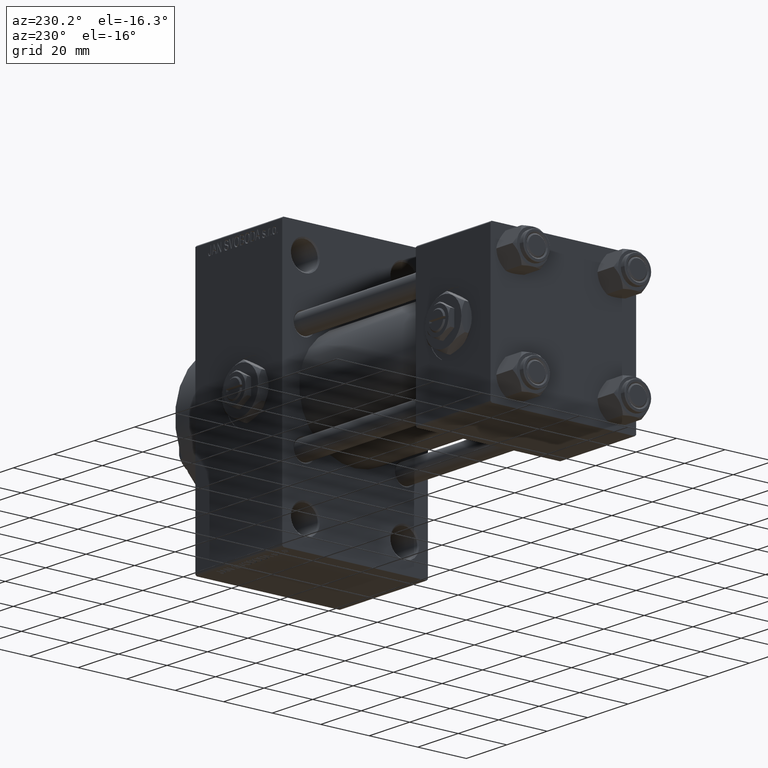
[diagram: clean part render]
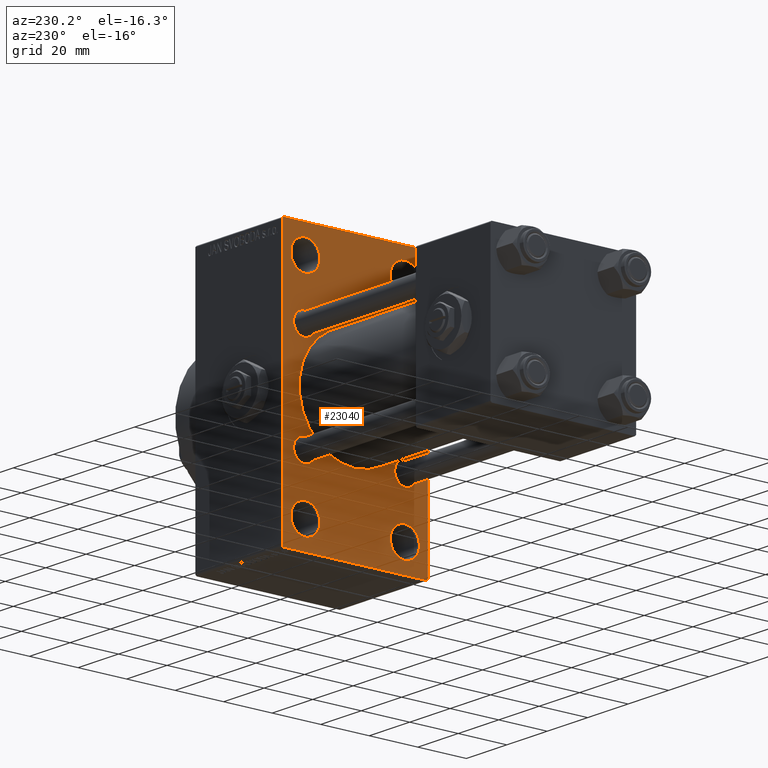
[diagram: same view with one face highlighted and labeled with its STEP entity id]
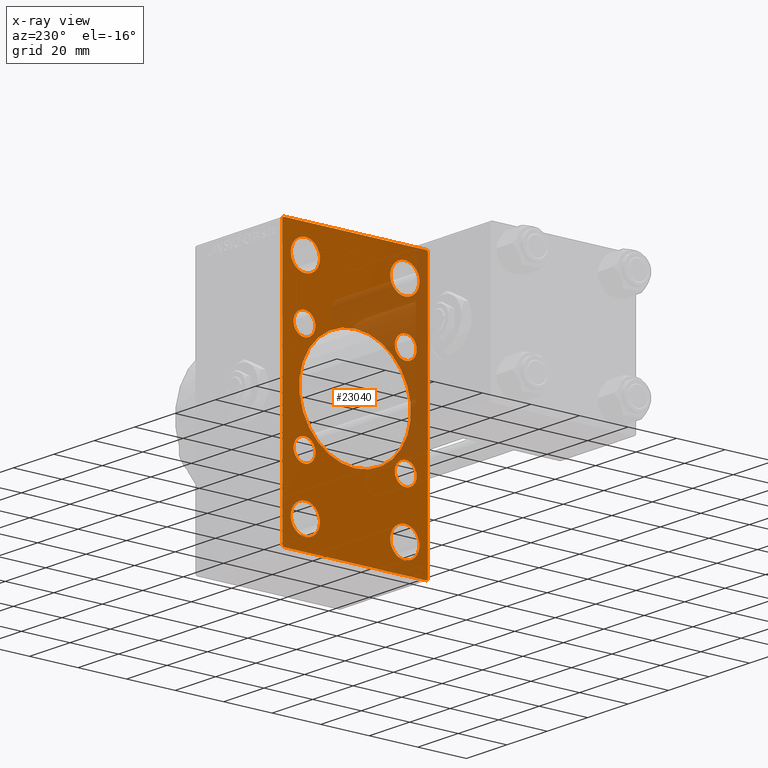
[diagram: x-ray of the same camera — body ghosted, the highlighted face saturated]
A machine part, auxiliary view. The second image highlights one B-rep face of the part: STEP entity #23040.
The next image is the same camera in x-ray: the body ghosted, the highlighted face saturated — about 22% of this face is hidden behind the body in this view.
In plain terms, the highlighted planar face has unit normal (-1, 0, 0).
Its self-contained STEP definition (entity closure, byte-faithful):
#150 = ORIENTED_EDGE ( 'NONE', *, *, #42231, .T. ) ;
#209 = EDGE_CURVE ( 'NONE', #23842, #15960, #23821, .T. ) ;
#325 = VERTEX_POINT ( 'NONE', #3480 ) ;
#548 = VECTOR ( 'NONE', #8849, 999.9999999999998863 ) ;
#586 = CARTESIAN_POINT ( 'NONE',  ( 103.0000000000000142, 20.84999999999999787, -25.35000000000000853 ) ) ;
#807 = AXIS2_PLACEMENT_3D ( 'NONE', #17692, #18436, #21688 ) ;
#1082 = CARTESIAN_POINT ( 'NONE',  ( 103.0000000000000142, -29.49999999999997513, 54.50000000000000000 ) ) ;
#1158 = VERTEX_POINT ( 'NONE', #41146 ) ;
#1219 = AXIS2_PLACEMENT_3D ( 'NONE', #29795, #41504, #4742 ) ;
#1446 = FACE_BOUND ( 'NONE', #37759, .T. ) ;
#1465 = DIRECTION ( 'NONE',  ( -0.000000000000000000, 0.7071067811865451302, 0.7071067811865500152 ) ) ;
#1754 = CARTESIAN_POINT ( 'NONE',  ( 103.0000000000000142, 20.84999999999999787, 25.35000000000000853 ) ) ;
#1761 = CARTESIAN_POINT ( 'NONE',  ( 103.0000000000000142, -20.84999999999999076, -16.34999999999999787 ) ) ;
#1772 = DIRECTION ( 'NONE',  ( 0.000000000000000000, 0.000000000000000000, 1.000000000000000000 ) ) ;
#1883 = LINE ( 'NONE', #21065, #41792 ) ;
#1897 = EDGE_LOOP ( 'NONE', ( #16395, #23778 ) ) ;
#2391 = VERTEX_POINT ( 'NONE', #1754 ) ;
#2395 = ORIENTED_EDGE ( 'NONE', *, *, #20343, .T. ) ;
#2466 = EDGE_CURVE ( 'NONE', #19553, #47683, #39825, .T. ) ;
#2744 = DIRECTION ( 'NONE',  ( 0.000000000000000000, -1.000000000000000000, -1.156482317317871478E-16 ) ) ;
#2986 = EDGE_LOOP ( 'NONE', ( #37488, #16113 ) ) ;
#3005 = CIRCLE ( 'NONE', #42802, 5.999999999999921840 ) ;
#3369 = ORIENTED_EDGE ( 'NONE', *, *, #25254, .F. ) ;
#3480 = CARTESIAN_POINT ( 'NONE',  ( 103.0000000000000142, -20.50000000000000000, -49.49999999999992184 ) ) ;
#3595 = CARTESIAN_POINT ( 'NONE',  ( 103.0000000000000142, -2.602085213965210642E-15, 23.00000000000000000 ) ) ;
#3650 = VECTOR ( 'NONE', #14931, 1000.000000000000000 ) ;
#3725 = CARTESIAN_POINT ( 'NONE',  ( 103.0000000000000142, 20.84999999999999787, -20.85000000000000142 ) ) ;
#3952 = DIRECTION ( 'NONE',  ( 1.000000000000000000, 0.000000000000000000, 0.000000000000000000 ) ) ;
#4019 = CARTESIAN_POINT ( 'NONE',  ( 103.0000000000000142, -20.84999999999999076, -20.85000000000000497 ) ) ;
#4073 = VERTEX_POINT ( 'NONE', #1082 ) ;
#4374 = CIRCLE ( 'NONE', #41789, 23.00000000000000000 ) ;
#4742 = DIRECTION ( 'NONE',  ( 0.000000000000000000, 0.000000000000000000, 1.000000000000000000 ) ) ;
#4760 = LINE ( 'NONE', #8499, #32496 ) ;
#4872 = DIRECTION ( 'NONE',  ( 0.000000000000000000, 0.000000000000000000, 1.000000000000000000 ) ) ;
#5172 = FACE_BOUND ( 'NONE', #24125, .T. ) ;
#5199 = AXIS2_PLACEMENT_3D ( 'NONE', #3725, #22918, #10352 ) ;
#5432 = EDGE_CURVE ( 'NONE', #14547, #1158, #14981, .T. ) ;
#5500 = DIRECTION ( 'NONE',  ( 0.000000000000000000, 0.000000000000000000, 1.000000000000000000 ) ) ;
#5585 = ORIENTED_EDGE ( 'NONE', *, *, #19047, .F. ) ;
#5674 = VERTEX_POINT ( 'NONE', #33079 ) ;
#5701 = ORIENTED_EDGE ( 'NONE', *, *, #21926, .T. ) ;
#6208 = VECTOR ( 'NONE', #1465, 1000.000000000000114 ) ;
#6415 = CARTESIAN_POINT ( 'NONE',  ( 103.0000000000000142, 20.50000000000000000, -43.50000000000000000 ) ) ;
#6669 = DIRECTION ( 'NONE',  ( -0.000000000000000000, 0.000000000000000000, 1.000000000000000000 ) ) ;
#6851 = VECTOR ( 'NONE', #2744, 1000.000000000000000 ) ;
#7062 = EDGE_CURVE ( 'NONE', #13175, #22643, #28833, .T. ) ;
#7222 = CARTESIAN_POINT ( 'NONE',  ( 103.0000000000000142, 29.99999999999999645, -54.49999999999999289 ) ) ;
#7334 = AXIS2_PLACEMENT_3D ( 'NONE', #40698, #43937, #36952 ) ;
#7592 = CIRCLE ( 'NONE', #25132, 5.999999999999921840 ) ;
#7688 = DIRECTION ( 'NONE',  ( 0.000000000000000000, 0.000000000000000000, -1.000000000000000000 ) ) ;
#7738 = AXIS2_PLACEMENT_3D ( 'NONE', #43117, #47108, #35153 ) ;
#8414 = CIRCLE ( 'NONE', #22077, 5.999999999999921840 ) ;
#8499 = CARTESIAN_POINT ( 'NONE',  ( 103.0000000000000142, 29.99999999999999645, 54.49999999999999289 ) ) ;
#8638 = ORIENTED_EDGE ( 'NONE', *, *, #27052, .T. ) ;
#8662 = ORIENTED_EDGE ( 'NONE', *, *, #27776, .T. ) ;
#8726 = CARTESIAN_POINT ( 'NONE',  ( 103.0000000000000142, -20.84999999999999076, 25.35000000000001208 ) ) ;
#8849 = DIRECTION ( 'NONE',  ( 0.000000000000000000, -0.7071067811865157093, 0.7071067811865794361 ) ) ;
#9007 = EDGE_CURVE ( 'NONE', #17499, #46875, #40032, .T. ) ;
#9154 = FACE_BOUND ( 'NONE', #2986, .T. ) ;
#9157 = CARTESIAN_POINT ( 'NONE',  ( 103.0000000000000142, 20.50000000000000000, -37.50000000000007816 ) ) ;
#9491 = CARTESIAN_POINT ( 'NONE',  ( 103.0000000000000142, 20.50000000000000000, -43.50000000000000000 ) ) ;
#9772 = VERTEX_POINT ( 'NONE', #33029 ) ;
#10107 = VECTOR ( 'NONE', #28022, 1000.000000000000000 ) ;
#10352 = DIRECTION ( 'NONE',  ( 0.000000000000000000, 0.000000000000000000, 1.000000000000000000 ) ) ;
#11280 = VECTOR ( 'NONE', #48902, 1000.000000000000000 ) ;
#11454 = CARTESIAN_POINT ( 'NONE',  ( 103.0000000000000142, 20.84999999999999787, 20.85000000000000142 ) ) ;
#11670 = CIRCLE ( 'NONE', #35553, 4.500000000000007105 ) ;
#12434 = VERTEX_POINT ( 'NONE', #19715 ) ;
#12725 = AXIS2_PLACEMENT_3D ( 'NONE', #48228, #40745, #29289 ) ;
#12845 = DIRECTION ( 'NONE',  ( 1.000000000000000000, -0.000000000000000000, 0.000000000000000000 ) ) ;
#12854 = EDGE_LOOP ( 'NONE', ( #24154, #38381 ) ) ;
#13175 = VERTEX_POINT ( 'NONE', #27981 ) ;
#13303 = AXIS2_PLACEMENT_3D ( 'NONE', #37252, #30022, #33515 ) ;
#13334 = DIRECTION ( 'NONE',  ( 1.000000000000000000, -0.000000000000000000, 0.000000000000000000 ) ) ;
#13892 = PLANE ( 'NONE',  #44278 ) ;
#14025 = CIRCLE ( 'NONE', #49096, 5.999999999999921840 ) ;
#14329 = DIRECTION ( 'NONE',  ( 0.000000000000000000, 0.000000000000000000, 1.000000000000000000 ) ) ;
#14547 = VERTEX_POINT ( 'NONE', #38587 ) ;
#14785 = EDGE_LOOP ( 'NONE', ( #39568, #17762 ) ) ;
#14791 = CARTESIAN_POINT ( 'NONE',  ( 103.0000000000000142, -20.84999999999999076, -25.35000000000001208 ) ) ;
#14931 = DIRECTION ( 'NONE',  ( 0.000000000000000000, 0.000000000000000000, -1.000000000000000000 ) ) ;
#14981 = LINE ( 'NONE', #15466, #11280 ) ;
#15466 = CARTESIAN_POINT ( 'NONE',  ( 103.0000000000000142, 41.99999999999915445, -42.00000000000149214 ) ) ;
#15774 = VERTEX_POINT ( 'NONE', #18429 ) ;
#15960 = VERTEX_POINT ( 'NONE', #18794 ) ;
#16113 = ORIENTED_EDGE ( 'NONE', *, *, #17297, .T. ) ;
#16119 = ORIENTED_EDGE ( 'NONE', *, *, #38322, .T. ) ;
#16395 = ORIENTED_EDGE ( 'NONE', *, *, #7062, .T. ) ;
#16584 = CARTESIAN_POINT ( 'NONE',  ( 103.0000000000000142, 20.50000000000000000, 43.50000000000000000 ) ) ;
#16902 = VERTEX_POINT ( 'NONE', #9157 ) ;
#17069 = CARTESIAN_POINT ( 'NONE',  ( 103.0000000000000142, 20.84999999999999787, 20.85000000000000142 ) ) ;
#17127 = EDGE_CURVE ( 'NONE', #42479, #47073, #1883, .T. ) ;
#17297 = EDGE_CURVE ( 'NONE', #15960, #23842, #17912, .T. ) ;
#17463 = DIRECTION ( 'NONE',  ( 1.000000000000000000, -0.000000000000000000, 0.000000000000000000 ) ) ;
#17464 = AXIS2_PLACEMENT_3D ( 'NONE', #39910, #28936, #5500 ) ;
#17499 = VERTEX_POINT ( 'NONE', #1761 ) ;
#17688 = EDGE_CURVE ( 'NONE', #22643, #13175, #20313, .T. ) ;
#17692 = CARTESIAN_POINT ( 'NONE',  ( 103.0000000000000142, -2.602085213965210642E-15, 0.000000000000000000 ) ) ;
#17762 = ORIENTED_EDGE ( 'NONE', *, *, #32627, .T. ) ;
#17912 = CIRCLE ( 'NONE', #1219, 4.500000000000007105 ) ;
#18131 = DIRECTION ( 'NONE',  ( 1.000000000000000000, -0.000000000000000000, 0.000000000000000000 ) ) ;
#18429 = CARTESIAN_POINT ( 'NONE',  ( 103.0000000000000142, -30.00000000000000000, -53.99999999999995737 ) ) ;
#18436 = DIRECTION ( 'NONE',  ( 1.000000000000000000, 0.000000000000000000, 0.000000000000000000 ) ) ;
#18455 = DIRECTION ( 'NONE',  ( 0.000000000000000000, 0.000000000000000000, 1.000000000000000000 ) ) ;
#18794 = CARTESIAN_POINT ( 'NONE',  ( 103.0000000000000142, -20.84999999999999076, 16.34999999999999787 ) ) ;
#18889 = CARTESIAN_POINT ( 'NONE',  ( 103.0000000000000142, -20.50000000000000000, -43.50000000000000000 ) ) ;
#19047 = EDGE_CURVE ( 'NONE', #46976, #15774, #49340, .T. ) ;
#19553 = VERTEX_POINT ( 'NONE', #3595 ) ;
#19715 = CARTESIAN_POINT ( 'NONE',  ( 103.0000000000000142, 20.50000000000000000, -49.49999999999992184 ) ) ;
#20152 = EDGE_CURVE ( 'NONE', #1158, #5674, #29675, .T. ) ;
#20313 = CIRCLE ( 'NONE', #5199, 4.500000000000007105 ) ;
#20343 = EDGE_CURVE ( 'NONE', #5674, #15774, #43005, .T. ) ;
#20379 = FACE_BOUND ( 'NONE', #25589, .T. ) ;
#20402 = LINE ( 'NONE', #43584, #6208 ) ;
#20972 = DIRECTION ( 'NONE',  ( 0.000000000000000000, 0.000000000000000000, -1.000000000000000000 ) ) ;
#21065 = CARTESIAN_POINT ( 'NONE',  ( 103.0000000000000142, 42.00000000000081002, 41.99999999999847944 ) ) ;
#21363 = AXIS2_PLACEMENT_3D ( 'NONE', #18889, #21649, #37589 ) ;
#21649 = DIRECTION ( 'NONE',  ( 1.000000000000000000, -0.000000000000000000, 0.000000000000000000 ) ) ;
#21688 = DIRECTION ( 'NONE',  ( 0.000000000000000000, 0.000000000000000000, -1.000000000000000000 ) ) ;
#21926 = EDGE_CURVE ( 'NONE', #36959, #325, #23627, .T. ) ;
#22077 = AXIS2_PLACEMENT_3D ( 'NONE', #9491, #17463, #40159 ) ;
#22108 = DIRECTION ( 'NONE',  ( 1.000000000000000000, -0.000000000000000000, 0.000000000000000000 ) ) ;
#22643 = VERTEX_POINT ( 'NONE', #586 ) ;
#22918 = DIRECTION ( 'NONE',  ( 1.000000000000000000, -0.000000000000000000, 0.000000000000000000 ) ) ;
#23040 = ADVANCED_FACE ( 'NONE', ( #31603, #46801, #39333, #5172, #9154, #20379, #31855, #35602, #1446, #39589 ), #13892, .T. ) ;
#23214 = EDGE_LOOP ( 'NONE', ( #30099, #23982 ) ) ;
#23627 = CIRCLE ( 'NONE', #7738, 5.999999999999921840 ) ;
#23778 = ORIENTED_EDGE ( 'NONE', *, *, #17688, .T. ) ;
#23821 = CIRCLE ( 'NONE', #17464, 4.500000000000007105 ) ;
#23842 = VERTEX_POINT ( 'NONE', #8726 ) ;
#23918 = CARTESIAN_POINT ( 'NONE',  ( 103.0000000000000142, 2.146024240737016609E-16, -23.00000000000000000 ) ) ;
#23982 = ORIENTED_EDGE ( 'NONE', *, *, #43524, .T. ) ;
#24125 = EDGE_LOOP ( 'NONE', ( #8638, #49072 ) ) ;
#24154 = ORIENTED_EDGE ( 'NONE', *, *, #9007, .T. ) ;
#25132 = AXIS2_PLACEMENT_3D ( 'NONE', #39158, #44132, #1772 ) ;
#25254 = EDGE_CURVE ( 'NONE', #42479, #4073, #46948, .T. ) ;
#25589 = EDGE_LOOP ( 'NONE', ( #40592, #150 ) ) ;
#26067 = CIRCLE ( 'NONE', #13303, 4.500000000000007105 ) ;
#26281 = CARTESIAN_POINT ( 'NONE',  ( 103.0000000000000142, -30.00000000000000000, 53.99999999999997158 ) ) ;
#26424 = CARTESIAN_POINT ( 'NONE',  ( 103.0000000000000142, -42.00000000000133582, -41.99999999999754152 ) ) ;
#26874 = VERTEX_POINT ( 'NONE', #42075 ) ;
#27052 = EDGE_CURVE ( 'NONE', #26874, #9772, #3005, .T. ) ;
#27081 = ORIENTED_EDGE ( 'NONE', *, *, #17127, .T. ) ;
#27470 = AXIS2_PLACEMENT_3D ( 'NONE', #6415, #22108, #48293 ) ;
#27658 = EDGE_CURVE ( 'NONE', #46976, #4073, #20402, .T. ) ;
#27776 = EDGE_CURVE ( 'NONE', #325, #36959, #46049, .T. ) ;
#27981 = CARTESIAN_POINT ( 'NONE',  ( 103.0000000000000142, 20.84999999999999787, -16.34999999999999432 ) ) ;
#28022 = DIRECTION ( 'NONE',  ( 0.000000000000000000, -1.000000000000000000, 1.156482317317871478E-16 ) ) ;
#28220 = ORIENTED_EDGE ( 'NONE', *, *, #5432, .T. ) ;
#28566 = EDGE_CURVE ( 'NONE', #47073, #14547, #4760, .T. ) ;
#28598 = AXIS2_PLACEMENT_3D ( 'NONE', #11454, #34633, #18455 ) ;
#28812 = DIRECTION ( 'NONE',  ( 0.000000000000000000, 0.7071067811865279218, -0.7071067811865672237 ) ) ;
#28833 = CIRCLE ( 'NONE', #7334, 4.500000000000007105 ) ;
#28936 = DIRECTION ( 'NONE',  ( 1.000000000000000000, -0.000000000000000000, 0.000000000000000000 ) ) ;
#29289 = DIRECTION ( 'NONE',  ( 0.000000000000000000, 0.000000000000000000, 1.000000000000000000 ) ) ;
#29675 = LINE ( 'NONE', #7222, #6851 ) ;
#29795 = CARTESIAN_POINT ( 'NONE',  ( 103.0000000000000142, -20.84999999999999076, 20.85000000000000497 ) ) ;
#29909 = ORIENTED_EDGE ( 'NONE', *, *, #20152, .T. ) ;
#30022 = DIRECTION ( 'NONE',  ( 1.000000000000000000, -0.000000000000000000, 0.000000000000000000 ) ) ;
#30099 = ORIENTED_EDGE ( 'NONE', *, *, #38417, .T. ) ;
#30105 = EDGE_CURVE ( 'NONE', #2391, #39671, #47690, .T. ) ;
#30841 = CARTESIAN_POINT ( 'NONE',  ( 103.0000000000000142, 20.84999999999999787, 16.34999999999999432 ) ) ;
#31104 = CARTESIAN_POINT ( 'NONE',  ( 103.0000000000000142, -2.602085213965210642E-15, 0.000000000000000000 ) ) ;
#31603 = FACE_BOUND ( 'NONE', #14785, .T. ) ;
#31747 = CARTESIAN_POINT ( 'NONE',  ( 103.0000000000000142, 29.99999999999999645, 54.49999999999999289 ) ) ;
#31855 = FACE_BOUND ( 'NONE', #1897, .T. ) ;
#32386 = ORIENTED_EDGE ( 'NONE', *, *, #27658, .T. ) ;
#32496 = VECTOR ( 'NONE', #20972, 1000.000000000000000 ) ;
#32627 = EDGE_CURVE ( 'NONE', #40856, #36832, #42201, .T. ) ;
#33029 = CARTESIAN_POINT ( 'NONE',  ( 103.0000000000000142, 20.50000000000000000, 37.50000000000007816 ) ) ;
#33079 = CARTESIAN_POINT ( 'NONE',  ( 103.0000000000000142, -29.50000000000000355, -54.50000000000000000 ) ) ;
#33515 = DIRECTION ( 'NONE',  ( 0.000000000000000000, 0.000000000000000000, 1.000000000000000000 ) ) ;
#34633 = DIRECTION ( 'NONE',  ( 1.000000000000000000, -0.000000000000000000, 0.000000000000000000 ) ) ;
#34774 = CARTESIAN_POINT ( 'NONE',  ( 103.0000000000000142, -20.50000000000000000, 37.50000000000007816 ) ) ;
#35153 = DIRECTION ( 'NONE',  ( 0.000000000000000000, 0.000000000000000000, 1.000000000000000000 ) ) ;
#35553 = AXIS2_PLACEMENT_3D ( 'NONE', #17069, #13334, #14329 ) ;
#35602 = FACE_BOUND ( 'NONE', #12854, .T. ) ;
#35812 = ORIENTED_EDGE ( 'NONE', *, *, #28566, .T. ) ;
#36343 = CARTESIAN_POINT ( 'NONE',  ( 103.0000000000000142, -20.50000000000000000, 43.50000000000000000 ) ) ;
#36832 = VERTEX_POINT ( 'NONE', #40424 ) ;
#36839 = DIRECTION ( 'NONE',  ( -1.000000000000000000, 0.000000000000000000, -0.000000000000000000 ) ) ;
#36869 = AXIS2_PLACEMENT_3D ( 'NONE', #4019, #46365, #42867 ) ;
#36952 = DIRECTION ( 'NONE',  ( 0.000000000000000000, 0.000000000000000000, 1.000000000000000000 ) ) ;
#36959 = VERTEX_POINT ( 'NONE', #38871 ) ;
#37252 = CARTESIAN_POINT ( 'NONE',  ( 103.0000000000000142, -20.84999999999999076, -20.85000000000000497 ) ) ;
#37488 = ORIENTED_EDGE ( 'NONE', *, *, #209, .T. ) ;
#37589 = DIRECTION ( 'NONE',  ( 0.000000000000000000, 0.000000000000000000, 1.000000000000000000 ) ) ;
#37759 = EDGE_LOOP ( 'NONE', ( #39151, #16119 ) ) ;
#38322 = EDGE_CURVE ( 'NONE', #47683, #19553, #4374, .T. ) ;
#38381 = ORIENTED_EDGE ( 'NONE', *, *, #46895, .T. ) ;
#38417 = EDGE_CURVE ( 'NONE', #16902, #12434, #43373, .T. ) ;
#38587 = CARTESIAN_POINT ( 'NONE',  ( 103.0000000000000142, 29.99999999999999645, -53.99999999999999289 ) ) ;
#38719 = CARTESIAN_POINT ( 'NONE',  ( 103.0000000000000142, 29.49999999999999645, 54.49999999999999289 ) ) ;
#38871 = CARTESIAN_POINT ( 'NONE',  ( 103.0000000000000142, -20.50000000000000000, -37.50000000000007816 ) ) ;
#39151 = ORIENTED_EDGE ( 'NONE', *, *, #2466, .T. ) ;
#39158 = CARTESIAN_POINT ( 'NONE',  ( 103.0000000000000142, 20.50000000000000000, 43.50000000000000000 ) ) ;
#39182 = EDGE_CURVE ( 'NONE', #9772, #26874, #7592, .T. ) ;
#39333 = FACE_BOUND ( 'NONE', #23214, .T. ) ;
#39568 = ORIENTED_EDGE ( 'NONE', *, *, #41909, .T. ) ;
#39589 = FACE_OUTER_BOUND ( 'NONE', #44413, .T. ) ;
#39671 = VERTEX_POINT ( 'NONE', #30841 ) ;
#39825 = CIRCLE ( 'NONE', #807, 23.00000000000000000 ) ;
#39910 = CARTESIAN_POINT ( 'NONE',  ( 103.0000000000000142, -20.84999999999999076, 20.85000000000000497 ) ) ;
#40032 = CIRCLE ( 'NONE', #36869, 4.500000000000007105 ) ;
#40159 = DIRECTION ( 'NONE',  ( 0.000000000000000000, 0.000000000000000000, 1.000000000000000000 ) ) ;
#40328 = DIRECTION ( 'NONE',  ( 0.000000000000000000, 0.000000000000000000, 1.000000000000000000 ) ) ;
#40424 = CARTESIAN_POINT ( 'NONE',  ( 103.0000000000000142, -20.50000000000000000, 49.49999999999992184 ) ) ;
#40592 = ORIENTED_EDGE ( 'NONE', *, *, #30105, .T. ) ;
#40698 = CARTESIAN_POINT ( 'NONE',  ( 103.0000000000000142, 20.84999999999999787, -20.85000000000000142 ) ) ;
#40745 = DIRECTION ( 'NONE',  ( 1.000000000000000000, -0.000000000000000000, 0.000000000000000000 ) ) ;
#40856 = VERTEX_POINT ( 'NONE', #34774 ) ;
#41146 = CARTESIAN_POINT ( 'NONE',  ( 103.0000000000000142, 29.49999999999996803, -54.49999999999999289 ) ) ;
#41504 = DIRECTION ( 'NONE',  ( 1.000000000000000000, -0.000000000000000000, 0.000000000000000000 ) ) ;
#41789 = AXIS2_PLACEMENT_3D ( 'NONE', #31104, #3952, #7688 ) ;
#41792 = VECTOR ( 'NONE', #28812, 1000.000000000000000 ) ;
#41909 = EDGE_CURVE ( 'NONE', #36832, #40856, #14025, .T. ) ;
#42075 = CARTESIAN_POINT ( 'NONE',  ( 103.0000000000000142, 20.50000000000000000, 49.49999999999992184 ) ) ;
#42201 = CIRCLE ( 'NONE', #12725, 5.999999999999921840 ) ;
#42231 = EDGE_CURVE ( 'NONE', #39671, #2391, #11670, .T. ) ;
#42479 = VERTEX_POINT ( 'NONE', #38719 ) ;
#42802 = AXIS2_PLACEMENT_3D ( 'NONE', #16584, #12845, #4872 ) ;
#42867 = DIRECTION ( 'NONE',  ( 0.000000000000000000, 0.000000000000000000, 1.000000000000000000 ) ) ;
#43005 = LINE ( 'NONE', #26424, #548 ) ;
#43117 = CARTESIAN_POINT ( 'NONE',  ( 103.0000000000000142, -20.50000000000000000, -43.50000000000000000 ) ) ;
#43373 = CIRCLE ( 'NONE', #27470, 5.999999999999921840 ) ;
#43524 = EDGE_CURVE ( 'NONE', #12434, #16902, #8414, .T. ) ;
#43567 = CARTESIAN_POINT ( 'NONE',  ( 103.0000000000000142, 0.000000000000000000, 0.000000000000000000 ) ) ;
#43584 = CARTESIAN_POINT ( 'NONE',  ( 103.0000000000000142, -42.00000000000008527, 41.99999999999979394 ) ) ;
#43937 = DIRECTION ( 'NONE',  ( 1.000000000000000000, -0.000000000000000000, 0.000000000000000000 ) ) ;
#44132 = DIRECTION ( 'NONE',  ( 1.000000000000000000, -0.000000000000000000, 0.000000000000000000 ) ) ;
#44157 = EDGE_LOOP ( 'NONE', ( #5701, #8662 ) ) ;
#44278 = AXIS2_PLACEMENT_3D ( 'NONE', #43567, #36839, #6669 ) ;
#44413 = EDGE_LOOP ( 'NONE', ( #29909, #2395, #5585, #32386, #3369, #27081, #35812, #28220 ) ) ;
#46049 = CIRCLE ( 'NONE', #21363, 5.999999999999921840 ) ;
#46365 = DIRECTION ( 'NONE',  ( 1.000000000000000000, -0.000000000000000000, 0.000000000000000000 ) ) ;
#46801 = FACE_BOUND ( 'NONE', #44157, .T. ) ;
#46875 = VERTEX_POINT ( 'NONE', #14791 ) ;
#46895 = EDGE_CURVE ( 'NONE', #46875, #17499, #26067, .T. ) ;
#46948 = LINE ( 'NONE', #31747, #10107 ) ;
#46976 = VERTEX_POINT ( 'NONE', #26281 ) ;
#47073 = VERTEX_POINT ( 'NONE', #48165 ) ;
#47108 = DIRECTION ( 'NONE',  ( 1.000000000000000000, -0.000000000000000000, 0.000000000000000000 ) ) ;
#47683 = VERTEX_POINT ( 'NONE', #23918 ) ;
#47690 = CIRCLE ( 'NONE', #28598, 4.500000000000007105 ) ;
#48165 = CARTESIAN_POINT ( 'NONE',  ( 103.0000000000000142, 29.99999999999999645, 53.99999999999996447 ) ) ;
#48228 = CARTESIAN_POINT ( 'NONE',  ( 103.0000000000000142, -20.50000000000000000, 43.50000000000000000 ) ) ;
#48293 = DIRECTION ( 'NONE',  ( 0.000000000000000000, 0.000000000000000000, 1.000000000000000000 ) ) ;
#48902 = DIRECTION ( 'NONE',  ( -0.000000000000000000, -0.7071067811865672237, -0.7071067811865279218 ) ) ;
#49072 = ORIENTED_EDGE ( 'NONE', *, *, #39182, .T. ) ;
#49096 = AXIS2_PLACEMENT_3D ( 'NONE', #36343, #18131, #40328 ) ;
#49097 = CARTESIAN_POINT ( 'NONE',  ( 103.0000000000000142, -30.00000000000000000, 54.50000000000000000 ) ) ;
#49340 = LINE ( 'NONE', #49097, #3650 ) ;